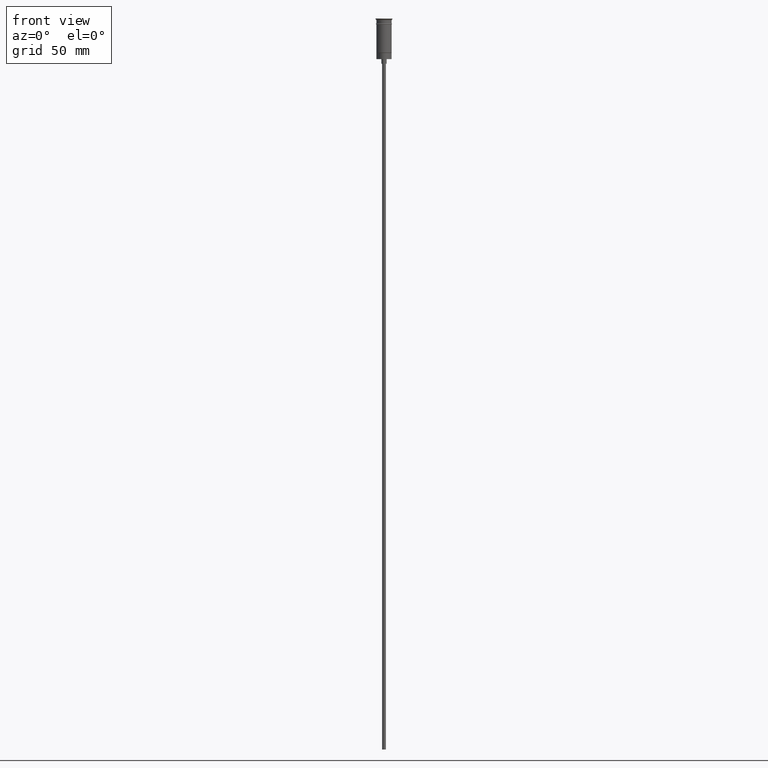
[diagram: clean part render]
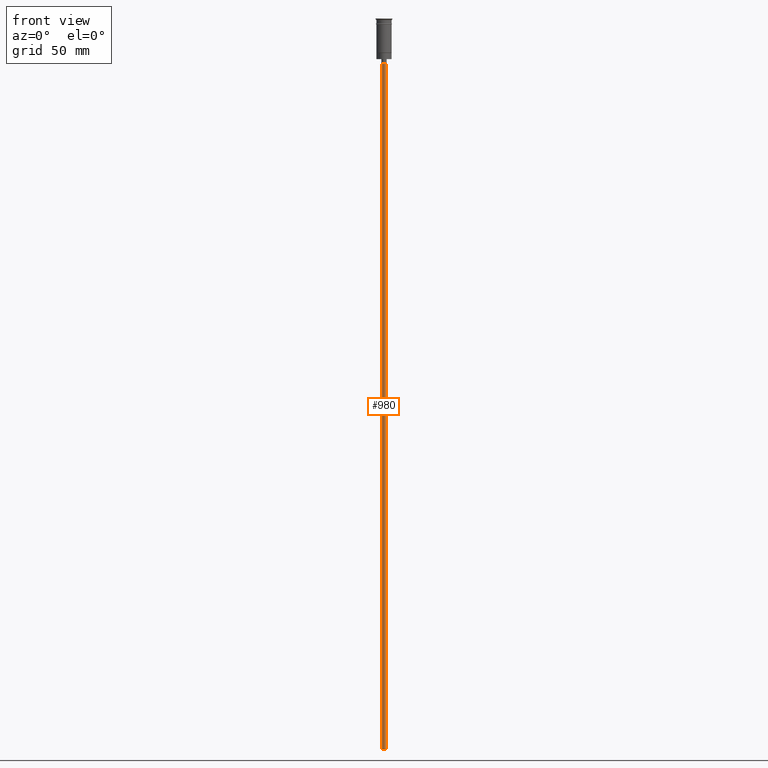
[diagram: same view with one face highlighted and labeled with its STEP entity id]
A machine part, front view. The second image highlights one B-rep face of the part: STEP entity #980.
In plain terms, the highlighted cylindrical surface (edge-blend (fillet) strip) has radius 1.25 mm, axis along (-0, -0, 1).
Its self-contained STEP definition (entity closure, byte-faithful):
#99 = VERTEX_POINT ( 'NONE', #894 ) ;
#139 = ORIENTED_EDGE ( 'NONE', *, *, #1433, .T. ) ;
#141 = DIRECTION ( 'NONE',  ( 0.000000000000000000, 0.000000000000000000, -1.000000000000000000 ) ) ;
#177 = EDGE_CURVE ( 'NONE', #663, #1462, #403, .T. ) ;
#200 = CARTESIAN_POINT ( 'NONE',  ( 0.000000000000000000, 0.000000000000000000, -476.5000000000000568 ) ) ;
#218 = ORIENTED_EDGE ( 'NONE', *, *, #177, .F. ) ;
#232 = VECTOR ( 'NONE', #453, 1000.000000000000000 ) ;
#268 = DIRECTION ( 'NONE',  ( -1.000000000000000000, 0.000000000000000000, 0.000000000000000000 ) ) ;
#312 = CYLINDRICAL_SURFACE ( 'NONE', #951, 1.250000000000000000 ) ;
#314 = ORIENTED_EDGE ( 'NONE', *, *, #601, .T. ) ;
#403 = CIRCLE ( 'NONE', #948, 1.250000000000000000 ) ;
#453 = DIRECTION ( 'NONE',  ( -0.000000000000000000, -0.000000000000000000, 1.000000000000000000 ) ) ;
#504 = CARTESIAN_POINT ( 'NONE',  ( 0.000000000000000000, 0.000000000000000000, -29.50000000000000000 ) ) ;
#548 = CARTESIAN_POINT ( 'NONE',  ( 1.250000000000000000, 0.000000000000000000, -476.5000000000000568 ) ) ;
#556 = CARTESIAN_POINT ( 'NONE',  ( 1.250000000000000000, 0.000000000000000000, -476.5000000000000568 ) ) ;
#601 = EDGE_CURVE ( 'NONE', #663, #1534, #1031, .T. ) ;
#642 = CIRCLE ( 'NONE', #1105, 1.250000000000000000 ) ;
#652 = DIRECTION ( 'NONE',  ( 0.000000000000000000, 0.000000000000000000, -1.000000000000000000 ) ) ;
#659 = CARTESIAN_POINT ( 'NONE',  ( -1.250000000000000000, 1.530808498934191571E-16, -476.5000000000000568 ) ) ;
#663 = VERTEX_POINT ( 'NONE', #556 ) ;
#689 = CARTESIAN_POINT ( 'NONE',  ( -1.250000000000000000, 1.530808498934191571E-16, -476.5000000000000568 ) ) ;
#894 = CARTESIAN_POINT ( 'NONE',  ( -1.250000000000000000, 1.530808498934191571E-16, -29.50000000000000000 ) ) ;
#947 = DIRECTION ( 'NONE',  ( 1.000000000000000000, 0.000000000000000000, 0.000000000000000000 ) ) ;
#948 = AXIS2_PLACEMENT_3D ( 'NONE', #1530, #652, #1274 ) ;
#951 = AXIS2_PLACEMENT_3D ( 'NONE', #200, #1086, #947 ) ;
#968 = EDGE_CURVE ( 'NONE', #1462, #99, #1571, .T. ) ;
#980 = ADVANCED_FACE ( 'NONE', ( #1578 ), #312, .T. ) ;
#1008 = EDGE_LOOP ( 'NONE', ( #1595, #218, #314, #139 ) ) ;
#1031 = LINE ( 'NONE', #548, #1598 ) ;
#1086 = DIRECTION ( 'NONE',  ( -0.000000000000000000, -0.000000000000000000, 1.000000000000000000 ) ) ;
#1105 = AXIS2_PLACEMENT_3D ( 'NONE', #504, #141, #268 ) ;
#1274 = DIRECTION ( 'NONE',  ( -1.000000000000000000, 0.000000000000000000, 0.000000000000000000 ) ) ;
#1300 = CARTESIAN_POINT ( 'NONE',  ( 1.250000000000000000, 0.000000000000000000, -29.50000000000000000 ) ) ;
#1433 = EDGE_CURVE ( 'NONE', #1534, #99, #642, .T. ) ;
#1462 = VERTEX_POINT ( 'NONE', #659 ) ;
#1529 = DIRECTION ( 'NONE',  ( -0.000000000000000000, -0.000000000000000000, 1.000000000000000000 ) ) ;
#1530 = CARTESIAN_POINT ( 'NONE',  ( 0.000000000000000000, 0.000000000000000000, -476.5000000000000568 ) ) ;
#1534 = VERTEX_POINT ( 'NONE', #1300 ) ;
#1571 = LINE ( 'NONE', #689, #232 ) ;
#1578 = FACE_OUTER_BOUND ( 'NONE', #1008, .T. ) ;
#1595 = ORIENTED_EDGE ( 'NONE', *, *, #968, .F. ) ;
#1598 = VECTOR ( 'NONE', #1529, 1000.000000000000000 ) ;